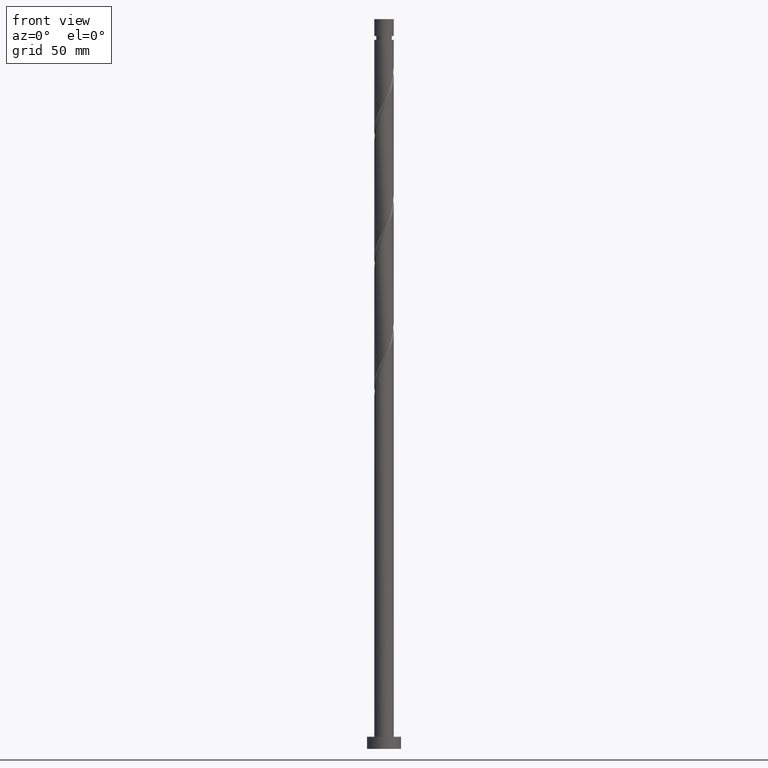
[diagram: clean part render]
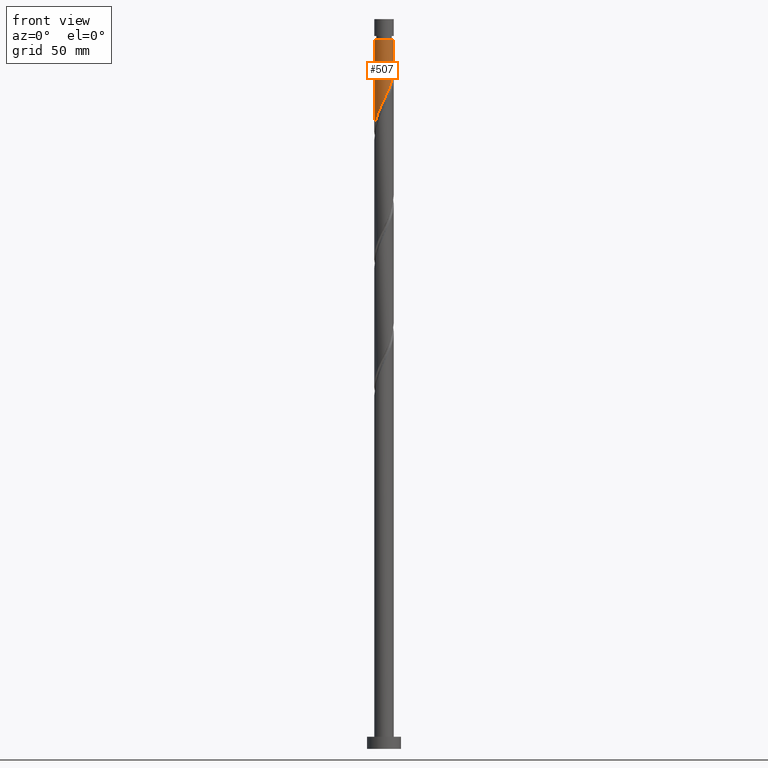
[diagram: same view with one face highlighted and labeled with its STEP entity id]
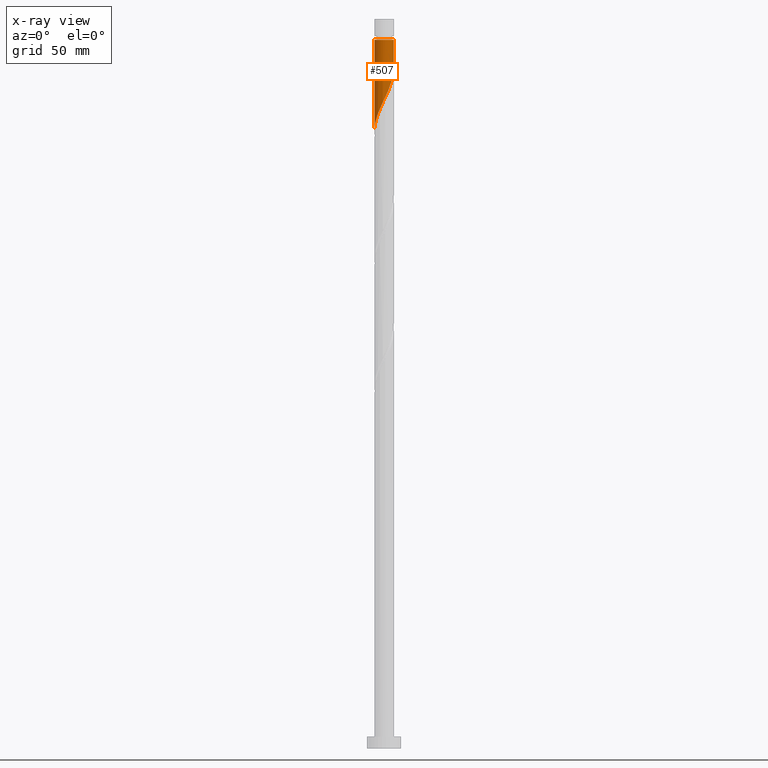
[diagram: x-ray of the same camera — body ghosted, the highlighted face saturated]
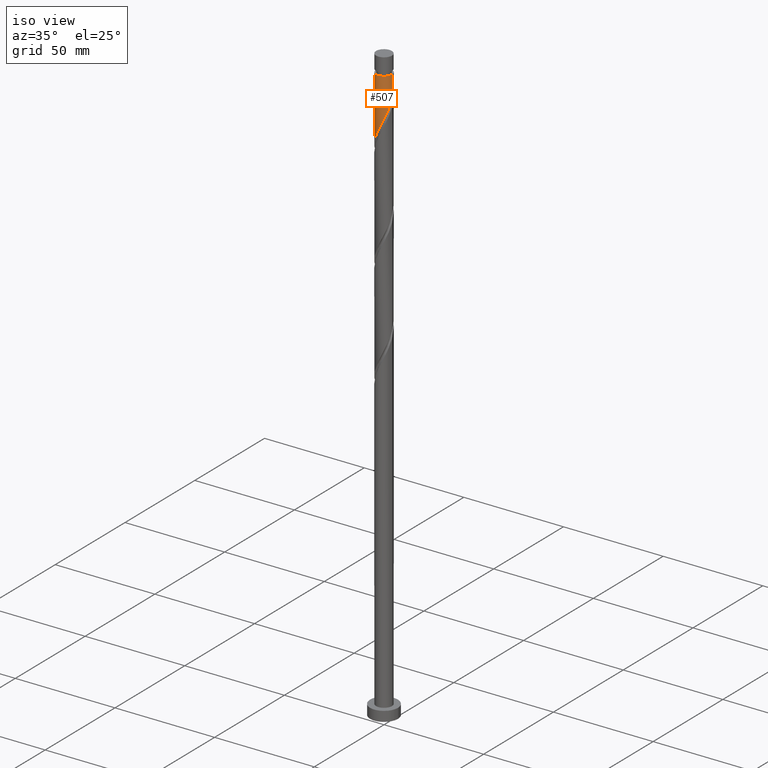
[diagram: same view with one face highlighted and labeled with its STEP entity id]
A machine part, front view. The second image highlights one B-rep face of the part: STEP entity #507.
The next image is the same camera in x-ray: the body ghosted, the highlighted face saturated — about 0% of this face is hidden behind the body in this view.
A second angle (iso view) of the same face is appended — the face is thin or edge-on in the first view.
In plain terms, the highlighted cylindrical surface (edge-blend (fillet) strip) has radius 4 mm, axis along (-0, -0, -1).
Its self-contained STEP definition (entity closure, byte-faithful):
#32 = CARTESIAN_POINT ( 'NONE',  ( 3.644592988728935445, -1.648314880873155586, 276.4541729475623697 ) ) ;
#42 = CARTESIAN_POINT ( 'NONE',  ( -3.999999999999998224, -0.04813158866557109422, 253.8540527136935907 ) ) ;
#67 = CARTESIAN_POINT ( 'NONE',  ( 0.9836620935111604069, -3.877165057846935436, 268.9541729475623697 ) ) ;
#115 = EDGE_CURVE ( 'NONE', #1089, #1451, #511, .T. ) ;
#133 = EDGE_CURVE ( 'NONE', #1191, #1650, #344, .T. ) ;
#176 = CARTESIAN_POINT ( 'NONE',  ( -2.417986421170494449, -3.186430866508027648, 261.4541729475624834 ) ) ;
#177 = DIRECTION ( 'NONE',  ( -0.000000000000000000, -0.000000000000000000, -1.000000000000000000 ) ) ;
#296 =( BOUNDED_CURVE ( )  B_SPLINE_CURVE ( 2, ( #644, #343, #780, #619, #32, #1234, #1366, #1829, #911, #1694, #379, #1059, #67, #1507, #1246, #365, #1081, #958, #815, #1683, #176, #1548, #768, #481, #1844, #1705, #1068, #521, #923, #42, #1102 ),
 .UNSPECIFIED., .F., .T. ) 
 B_SPLINE_CURVE_WITH_KNOTS ( ( 3, 2, 2, 2, 2, 2, 2, 2, 2, 2, 2, 2, 2, 2, 2, 3 ),
 ( 0.3045303401299221946, 0.3125000000000000000, 0.3214285714285714524, 0.3303571428571428492, 0.3392857142857143016, 0.3482142857142856984, 0.3571428571428571508, 0.3660714285714285476, 0.3750000000000000000, 0.3839285714285714524, 0.3928571428571428492, 0.4017857142857143016, 0.4107142857142856984, 0.4196428571428571508, 0.4285714285714285476, 0.4295303401299218060 ),
 .UNSPECIFIED. ) 
 CURVE ( )  GEOMETRIC_REPRESENTATION_ITEM ( )  RATIONAL_B_SPLINE_CURVE ( ( 0.9079949616362034126, 0.9039886423360667944, 0.9090909090909334855, 0.9033747362666083580, 0.9090909090909334855, 0.9033747362666083580, 0.9090909090909334855, 0.9033747362666083580, 0.9090909090909334855, 0.9033747362666083580, 0.9090909090909334855, 0.9033747362666083580, 0.9090909090909334855, 0.9033747362666083580, 0.9090909090909334855, 0.9033747362666083580, 0.9090909090909334855, 0.9033747362666083580, 0.9090909090909334855, 0.9033747362666083580, 0.9090909090909334855, 0.9033747362666083580, 0.9090909090909334855, 0.9033747362666083580, 0.9090909090909334855, 0.9033747362666083580, 0.9090909090909334855, 0.9033747362666083580, 0.9090909090909334855, 0.9084770030214753822, 0.9079949616362038567 ) ) 
 REPRESENTATION_ITEM ( '' )  );
#336 = AXIS2_PLACEMENT_3D ( 'NONE', #1494, #1518, #1232 ) ;
#343 = CARTESIAN_POINT ( 'NONE',  ( 3.999999999999997335, -0.4020151261036954971, 279.1654189465048717 ) ) ;
#344 = LINE ( 'NONE', #1533, #899 ) ;
#355 = CARTESIAN_POINT ( 'NONE',  ( 4.000000000000000000, 4.898587196589412829E-16, 300.0000000000000000 ) ) ;
#365 = CARTESIAN_POINT ( 'NONE',  ( -0.3543120252768633960, -4.009686527761982866, 266.1416729475624834 ) ) ;
#379 = CARTESIAN_POINT ( 'NONE',  ( 1.821750020894124855, -3.561071027285505952, 270.8291729475623697 ) ) ;
#481 = CARTESIAN_POINT ( 'NONE',  ( -3.355809096668276315, -2.222986362731492083, 258.6416729475624265 ) ) ;
#485 = CIRCLE ( 'NONE', #336, 3.999999999999976019 ) ;
#507 = ADVANCED_FACE ( 'NONE', ( #1130 ), #854, .T. ) ;
#511 = LINE ( 'NONE', #355, #1910 ) ;
#521 = CARTESIAN_POINT ( 'NONE',  ( -3.987997157791136171, -0.5468105079655618539, 254.8916729475624265 ) ) ;
#619 = CARTESIAN_POINT ( 'NONE',  ( 3.830313472238014771, -1.237667874093733467, 277.3916729475623697 ) ) ;
#629 = EDGE_LOOP ( 'NONE', ( #1547, #1046, #641, #1804 ) ) ;
#641 = ORIENTED_EDGE ( 'NONE', *, *, #133, .T. ) ;
#644 = CARTESIAN_POINT ( 'NONE',  ( 3.999999999999999112, -2.044830972449083723E-15, 280.0036900254684156 ) ) ;
#768 = CARTESIAN_POINT ( 'NONE',  ( -3.066410025678343754, -2.568487795263845186, 259.5791729475624265 ) ) ;
#780 = CARTESIAN_POINT ( 'NONE',  ( 3.919999999999999041, -0.7959899496852987921, 278.3291729475623129 ) ) ;
#801 = CARTESIAN_POINT ( 'NONE',  ( -3.999999999999976019, 0.000000000000000000, 291.4541729475624265 ) ) ;
#815 = CARTESIAN_POINT ( 'NONE',  ( -1.648314880873155364, -3.644592988728935445, 263.3291729475624265 ) ) ;
#854 = CYLINDRICAL_SURFACE ( 'NONE', #1315, 4.000000000000000000 ) ;
#899 = VECTOR ( 'NONE', #177, 1000.000000000000000 ) ;
#911 = CARTESIAN_POINT ( 'NONE',  ( 2.568487795263845186, -3.066410025678344198, 272.7041729475624265 ) ) ;
#912 = DIRECTION ( 'NONE',  ( -0.000000000000000000, -0.000000000000000000, -1.000000000000000000 ) ) ;
#923 = CARTESIAN_POINT ( 'NONE',  ( -3.998841842776559741, -0.09624924134434931222, 253.9541729475624550 ) ) ;
#958 = CARTESIAN_POINT ( 'NONE',  ( -1.237667874093733467, -3.830313472238014771, 264.2666729475624265 ) ) ;
#1000 = EDGE_CURVE ( 'NONE', #1089, #1191, #485, .T. ) ;
#1009 = DIRECTION ( 'NONE',  ( -1.000000000000000000, 0.000000000000000000, 0.000000000000000000 ) ) ;
#1046 = ORIENTED_EDGE ( 'NONE', *, *, #1000, .T. ) ;
#1059 = CARTESIAN_POINT ( 'NONE',  ( 1.420513679056759626, -3.766332957902735590, 269.8916729475623697 ) ) ;
#1068 = CARTESIAN_POINT ( 'NONE',  ( -3.877165057846935436, -0.9836620935111604069, 255.8291729475623413 ) ) ;
#1081 = CARTESIAN_POINT ( 'NONE',  ( -0.7959899496852986811, -3.919999999999999041, 265.2041729475624265 ) ) ;
#1089 = VERTEX_POINT ( 'NONE', #1659 ) ;
#1102 = CARTESIAN_POINT ( 'NONE',  ( -3.999999999999999112, 7.156908403571792636E-15, 253.7536900254685008 ) ) ;
#1130 = FACE_OUTER_BOUND ( 'NONE', #629, .T. ) ;
#1191 = VERTEX_POINT ( 'NONE', #801 ) ;
#1232 = DIRECTION ( 'NONE',  ( -1.000000000000000000, 0.000000000000000000, 0.000000000000000000 ) ) ;
#1234 = CARTESIAN_POINT ( 'NONE',  ( 3.458872505219854787, -2.058961887652576817, 275.5166729475623697 ) ) ;
#1246 = CARTESIAN_POINT ( 'NONE',  ( 0.09624924134434909018, -3.998841842776559741, 267.0791729475623129 ) ) ;
#1281 = DIRECTION ( 'NONE',  ( -0.000000000000000000, -0.000000000000000000, -1.000000000000000000 ) ) ;
#1285 = EDGE_CURVE ( 'NONE', #1451, #1650, #296, .T. ) ;
#1315 = AXIS2_PLACEMENT_3D ( 'NONE', #1596, #1281, #1009 ) ;
#1366 = CARTESIAN_POINT ( 'NONE',  ( 3.186430866508027648, -2.417986421170494449, 274.5791729475623697 ) ) ;
#1451 = VERTEX_POINT ( 'NONE', #1842 ) ;
#1494 = CARTESIAN_POINT ( 'NONE',  ( 0.000000000000000000, 0.000000000000000000, 291.4541729475624265 ) ) ;
#1507 = CARTESIAN_POINT ( 'NONE',  ( 0.5468105079655616318, -3.987997157791136171, 268.0166729475624265 ) ) ;
#1518 = DIRECTION ( 'NONE',  ( -0.000000000000000000, -0.000000000000000000, -1.000000000000000000 ) ) ;
#1533 = CARTESIAN_POINT ( 'NONE',  ( -4.000000000000000000, 0.000000000000000000, 300.0000000000000000 ) ) ;
#1547 = ORIENTED_EDGE ( 'NONE', *, *, #115, .F. ) ;
#1548 = CARTESIAN_POINT ( 'NONE',  ( -2.777010954688412969, -2.913989227796199177, 260.5166729475624265 ) ) ;
#1596 = CARTESIAN_POINT ( 'NONE',  ( 0.000000000000000000, 0.000000000000000000, 300.0000000000000000 ) ) ;
#1650 = VERTEX_POINT ( 'NONE', #1880 ) ;
#1659 = CARTESIAN_POINT ( 'NONE',  ( 3.999999999999976019, 4.898587196589398038E-16, 291.4541729475624265 ) ) ;
#1683 = CARTESIAN_POINT ( 'NONE',  ( -2.058961887652576817, -3.458872505219855675, 262.3916729475623697 ) ) ;
#1694 = CARTESIAN_POINT ( 'NONE',  ( 2.222986362731492083, -3.355809096668278091, 271.7666729475624265 ) ) ;
#1705 = CARTESIAN_POINT ( 'NONE',  ( -3.766332957902735590, -1.420513679056759626, 256.7666729475624265 ) ) ;
#1804 = ORIENTED_EDGE ( 'NONE', *, *, #1285, .F. ) ;
#1829 = CARTESIAN_POINT ( 'NONE',  ( 2.913989227796199177, -2.777010954688412969, 273.6416729475623697 ) ) ;
#1842 = CARTESIAN_POINT ( 'NONE',  ( 3.999999999999999112, -2.044830972449083723E-15, 280.0036900254684156 ) ) ;
#1844 = CARTESIAN_POINT ( 'NONE',  ( -3.561071027285505952, -1.821750020894125521, 257.7041729475624265 ) ) ;
#1880 = CARTESIAN_POINT ( 'NONE',  ( -3.999999999999999112, 7.156908403571792636E-15, 253.7536900254685008 ) ) ;
#1910 = VECTOR ( 'NONE', #912, 1000.000000000000000 ) ;